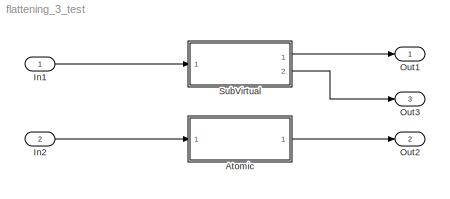
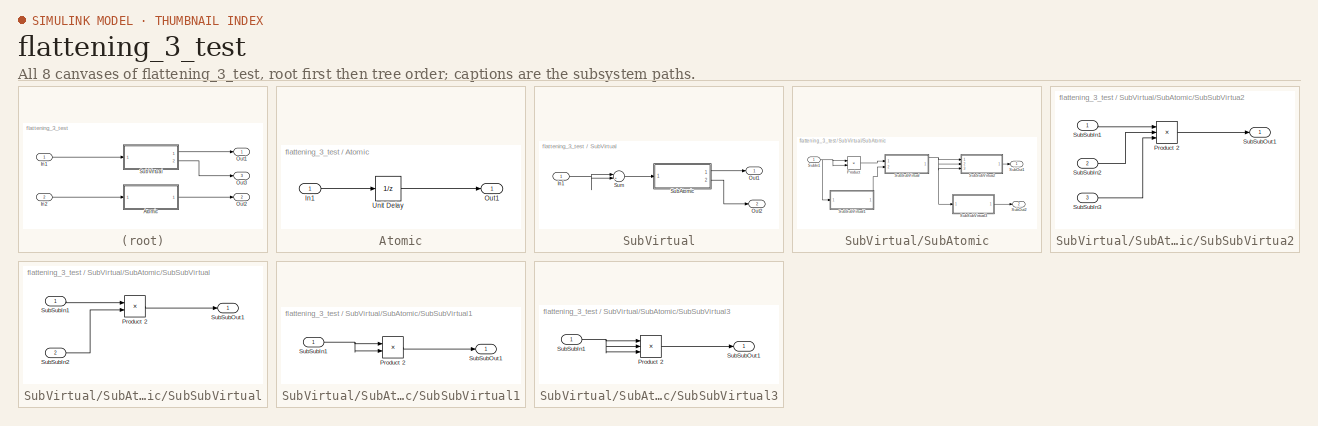
[diagram: thumbnail index - all 8 canvases of the model, root first then tree order]
MODEL flattening_3_test
KIND model
BLOCK [SubSystem] Atomic
  Ports = [1, 1]
  RequestExecContextInheritance = off
  SID = 3
  TreatAsAtomicUnit = on
  Variant = off
BLOCK [Inport] Atomic/In1
  IconDisplay = Port number
  SID = 4
BLOCK [Outport] Atomic/Out1
  IconDisplay = Port number
  SID = 6
BLOCK [UnitDelay] Atomic/Unit Delay
  SID = 5
BLOCK [Inport] In1
  IconDisplay = Port number
  SID = 1
BLOCK [Inport] In2
  IconDisplay = Port number
  Port = 2
  SID = 2
BLOCK [Outport] Out1
  IconDisplay = Port number
  SID = 36
BLOCK [Outport] Out2
  IconDisplay = Port number
  Port = 2
  SID = 37
BLOCK [Outport] Out3
  IconDisplay = Port number
  Port = 3
  SID = 38
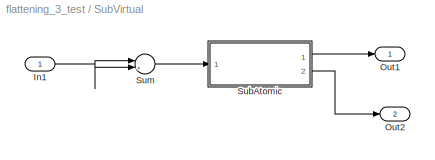
BLOCK [SubSystem] SubVirtual
  Ports = [1, 2]
  RequestExecContextInheritance = off
  SID = 7
  Variant = off
BLOCK [Inport] SubVirtual/In1
  IconDisplay = Port number
  SID = 8
BLOCK [Outport] SubVirtual/Out1
  IconDisplay = Port number
  SID = 34
BLOCK [Outport] SubVirtual/Out2
  IconDisplay = Port number
  Port = 2
  SID = 35
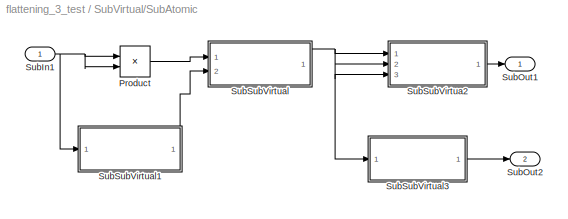
BLOCK [SubSystem] SubVirtual/SubAtomic
  Ports = [1, 2]
  RequestExecContextInheritance = off
  SID = 9
  TreatAsAtomicUnit = on
  Variant = off
BLOCK [Product] SubVirtual/SubAtomic/Product
  InputSameDT = off
  OutDataTypeStr = Inherit: Inherit via internal rule
  Ports = [2, 1]
  SID = 11
  SaturateOnIntegerOverflow = off
BLOCK [Inport] SubVirtual/SubAtomic/SubIn1
  IconDisplay = Port number
  SID = 10
BLOCK [Outport] SubVirtual/SubAtomic/SubOut1
  IconDisplay = Port number
  SID = 31
BLOCK [Outport] SubVirtual/SubAtomic/SubOut2
  IconDisplay = Port number
  Port = 2
  SID = 32
BLOCK [SubSystem] SubVirtual/SubAtomic/SubSubVirtua2
  Ports = [3, 1]
  RequestExecContextInheritance = off
  SID = 12
  Variant = off
BLOCK [Product] SubVirtual/SubAtomic/SubSubVirtua2/Product 2
  InputSameDT = off
  Inputs = 3
  OutDataTypeStr = Inherit: Inherit via internal rule
  Ports = [3, 1]
  SID = 16
  SaturateOnIntegerOverflow = off
BLOCK [Inport] SubVirtual/SubAtomic/SubSubVirtua2/SubSubIn1
  IconDisplay = Port number
  SID = 13
BLOCK [Inport] SubVirtual/SubAtomic/SubSubVirtua2/SubSubIn2
  IconDisplay = Port number
  Port = 2
  SID = 14
BLOCK [Inport] SubVirtual/SubAtomic/SubSubVirtua2/SubSubIn3
  IconDisplay = Port number
  Port = 3
  SID = 15
BLOCK [Outport] SubVirtual/SubAtomic/SubSubVirtua2/SubSubOut1
  IconDisplay = Port number
  SID = 17
BLOCK [SubSystem] SubVirtual/SubAtomic/SubSubVirtual
  Ports = [2, 1]
  RequestExecContextInheritance = off
  SID = 18
  Variant = off
BLOCK [Product] SubVirtual/SubAtomic/SubSubVirtual/Product 2
  InputSameDT = off
  OutDataTypeStr = Inherit: Inherit via internal rule
  Ports = [2, 1]
  SID = 21
  SaturateOnIntegerOverflow = off
BLOCK [Inport] SubVirtual/SubAtomic/SubSubVirtual/SubSubIn1
  IconDisplay = Port number
  SID = 19
BLOCK [Inport] SubVirtual/SubAtomic/SubSubVirtual/SubSubIn2
  IconDisplay = Port number
  Port = 2
  SID = 20
BLOCK [Outport] SubVirtual/SubAtomic/SubSubVirtual/SubSubOut1
  IconDisplay = Port number
  SID = 22
BLOCK [SubSystem] SubVirtual/SubAtomic/SubSubVirtual1
  Ports = [1, 1]
  RequestExecContextInheritance = off
  SID = 23
  Variant = off
BLOCK [Product] SubVirtual/SubAtomic/SubSubVirtual1/Product 2
  InputSameDT = off
  OutDataTypeStr = Inherit: Inherit via internal rule
  Ports = [2, 1]
  SID = 25
  SaturateOnIntegerOverflow = off
BLOCK [Inport] SubVirtual/SubAtomic/SubSubVirtual1/SubSubIn1
  IconDisplay = Port number
  SID = 24
BLOCK [Outport] SubVirtual/SubAtomic/SubSubVirtual1/SubSubOut1
  IconDisplay = Port number
  SID = 26
BLOCK [SubSystem] SubVirtual/SubAtomic/SubSubVirtual3
  Ports = [1, 1]
  RequestExecContextInheritance = off
  SID = 27
  Variant = off
BLOCK [Product] SubVirtual/SubAtomic/SubSubVirtual3/Product 2
  InputSameDT = off
  Inputs = 3
  OutDataTypeStr = Inherit: Inherit via internal rule
  Ports = [3, 1]
  SID = 29
  SaturateOnIntegerOverflow = off
BLOCK [Inport] SubVirtual/SubAtomic/SubSubVirtual3/SubSubIn1
  IconDisplay = Port number
  SID = 28
BLOCK [Outport] SubVirtual/SubAtomic/SubSubVirtual3/SubSubOut1
  IconDisplay = Port number
  SID = 30
BLOCK [Sum] SubVirtual/Sum
  IconShape = round
  InputSameDT = off
  Inputs = |++
  OutDataTypeStr = Inherit: Inherit via internal rule
  Ports = [2, 1]
  SID = 33
  SaturateOnIntegerOverflow = off
LINE Atomic/In1:1 -> Atomic/Unit Delay:1
LINE Atomic/Unit Delay:1 -> Atomic/Out1:1
LINE Atomic:1 -> Out2:1
LINE In1:1 -> SubVirtual:1
LINE In2:1 -> Atomic:1
NET SubVirtual/In1:1 -> SubVirtual/Sum:1, SubVirtual/Sum:2
LINE SubVirtual/SubAtomic/Product:1 -> SubVirtual/SubAtomic/SubSubVirtual:1
NET SubVirtual/SubAtomic/SubIn1:1 -> SubVirtual/SubAtomic/Product:1, SubVirtual/SubAtomic/Product:2, SubVirtual/SubAtomic/SubSubVirtual1:1
LINE SubVirtual/SubAtomic/SubSubVirtua2/Product 2:1 -> SubVirtual/SubAtomic/SubSubVirtua2/SubSubOut1:1
LINE SubVirtual/SubAtomic/SubSubVirtua2/SubSubIn1:1 -> SubVirtual/SubAtomic/SubSubVirtua2/Product 2:1
LINE SubVirtual/SubAtomic/SubSubVirtua2/SubSubIn2:1 -> SubVirtual/SubAtomic/SubSubVirtua2/Product 2:2
LINE SubVirtual/SubAtomic/SubSubVirtua2/SubSubIn3:1 -> SubVirtual/SubAtomic/SubSubVirtua2/Product 2:3
LINE SubVirtual/SubAtomic/SubSubVirtua2:1 -> SubVirtual/SubAtomic/SubOut1:1
LINE SubVirtual/SubAtomic/SubSubVirtual/Product 2:1 -> SubVirtual/SubAtomic/SubSubVirtual/SubSubOut1:1
LINE SubVirtual/SubAtomic/SubSubVirtual/SubSubIn1:1 -> SubVirtual/SubAtomic/SubSubVirtual/Product 2:1
LINE SubVirtual/SubAtomic/SubSubVirtual/SubSubIn2:1 -> SubVirtual/SubAtomic/SubSubVirtual/Product 2:2
LINE SubVirtual/SubAtomic/SubSubVirtual1/Product 2:1 -> SubVirtual/SubAtomic/SubSubVirtual1/SubSubOut1:1
NET SubVirtual/SubAtomic/SubSubVirtual1/SubSubIn1:1 -> SubVirtual/SubAtomic/SubSubVirtual1/Product 2:1, SubVirtual/SubAtomic/SubSubVirtual1/Product 2:2
LINE SubVirtual/SubAtomic/SubSubVirtual1:1 -> SubVirtual/SubAtomic/SubSubVirtual:2
LINE SubVirtual/SubAtomic/SubSubVirtual3/Product 2:1 -> SubVirtual/SubAtomic/SubSubVirtual3/SubSubOut1:1
NET SubVirtual/SubAtomic/SubSubVirtual3/SubSubIn1:1 -> SubVirtual/SubAtomic/SubSubVirtual3/Product 2:1, SubVirtual/SubAtomic/SubSubVirtual3/Product 2:2, SubVirtual/SubAtomic/SubSubVirtual3/Product 2:3
LINE SubVirtual/SubAtomic/SubSubVirtual3:1 -> SubVirtual/SubAtomic/SubOut2:1
NET SubVirtual/SubAtomic/SubSubVirtual:1 -> SubVirtual/SubAtomic/SubSubVirtua2:1, SubVirtual/SubAtomic/SubSubVirtua2:2, SubVirtual/SubAtomic/SubSubVirtua2:3, SubVirtual/SubAtomic/SubSubVirtual3:1
LINE SubVirtual/SubAtomic:1 -> SubVirtual/Out1:1
LINE SubVirtual/SubAtomic:2 -> SubVirtual/Out2:1
LINE SubVirtual/Sum:1 -> SubVirtual/SubAtomic:1
LINE SubVirtual:1 -> Out1:1
LINE SubVirtual:2 -> Out3:1
note: NET lines group one-source signal fan-out (src -> all destinations, sorted); 1:1 wires keep LINE
